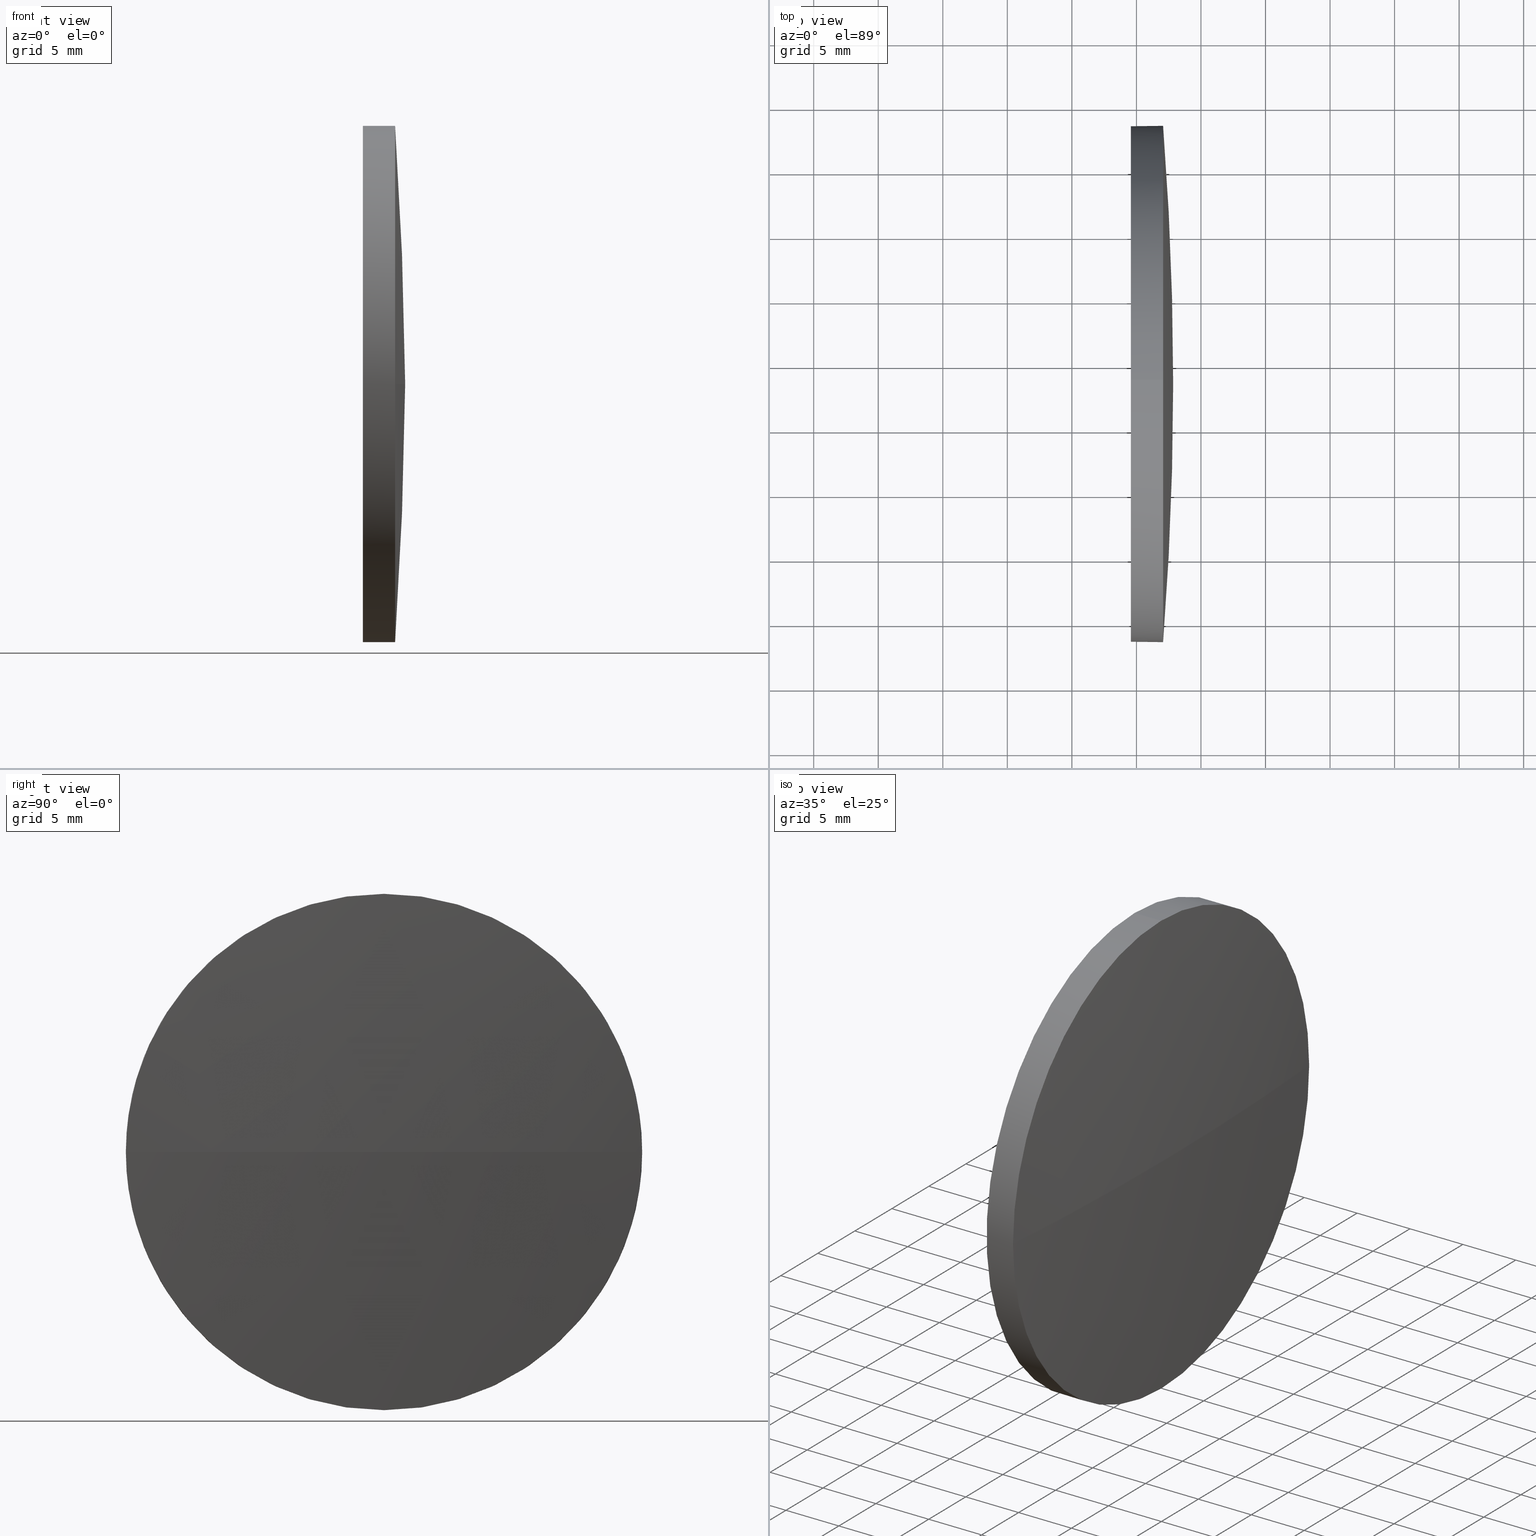
[diagram: canonical four-view strip — front | top / right | iso, engineering-drawing reading convention]
A machine part, canonical four-view strip (front | top / right | iso — engineering-drawing reading convention). The complete STEP part file that produces these views, byte-faithful:
ISO-10303-21;
HEADER;
FILE_DESCRIPTION (( 'STEP AP214' ),
    '1' );
FILE_NAME ('100235.STEP',
    '2019-05-28T05:45:17',
    ( '' ),
    ( '' ),
    'SwSTEP 2.0',
    'SolidWorks 2016',
    '' );
FILE_SCHEMA (( 'AUTOMOTIVE_DESIGN' ));
ENDSEC;

DATA;
#1 = DIRECTION ( 'NONE',  ( 0.0000000000000000000, 0.0000000000000000000, 1.000000000000000000 ) ) ;
#2 = PRODUCT_DEFINITION_FORMATION_WITH_SPECIFIED_SOURCE ( '�κ�', '', #74, .NOT_KNOWN. ) ;
#3 = CARTESIAN_POINT ( 'NONE',  ( 176.0471157877914800, 108.4341461141712300, 0.0000000000000000000 ) ) ;
#4 = PRESENTATION_LAYER_ASSIGNMENT (  '', '', ( #48 ) ) ;
#5 =( NAMED_UNIT ( * ) SI_UNIT ( $, .STERADIAN. ) SOLID_ANGLE_UNIT ( ) );
#6 = EDGE_LOOP ( 'NONE', ( #146, #47, #102, #87, #33 ) ) ;
#7 = APPLICATION_CONTEXT ( 'automotive_design' ) ;
#8 = CIRCLE ( 'NONE', #140, 256.8002564102557700 ) ;
#9 = EDGE_CURVE ( 'NONE', #184, #113, #120, .T. ) ;
#10 = ORIENTED_EDGE ( 'NONE', *, *, #28, .F. ) ;
#11 = UNCERTAINTY_MEASURE_WITH_UNIT (LENGTH_MEASURE( 1.000000000000000100E-005 ), #112, 'distance_accuracy_value', 'NONE');
#12 = FACE_OUTER_BOUND ( 'NONE', #6, .T. ) ;
#13 = EDGE_CURVE ( 'NONE', #137, #184, #145, .T. ) ;
#14 =( GEOMETRIC_REPRESENTATION_CONTEXT ( 3 ) GLOBAL_UNCERTAINTY_ASSIGNED_CONTEXT ( ( #11 ) ) GLOBAL_UNIT_ASSIGNED_CONTEXT ( ( #112, #41, #5 ) ) REPRESENTATION_CONTEXT ( 'NONE', 'WORKASPACE' ) );
#15 = EDGE_LOOP ( 'NONE', ( #99, #159, #10, #104 ) ) ;
#16 = ADVANCED_FACE ( 'NONE', ( #106 ), #80, .T. ) ;
#17 = DIRECTION ( 'NONE',  ( -1.000000000000000000, -0.0000000000000000000, -0.0000000000000000000 ) ) ;
#18 = CARTESIAN_POINT ( 'NONE',  ( 432.0673721980472200, 108.4341461141712000, -20.00000000000000400 ) ) ;
#19 = ORIENTED_EDGE ( 'NONE', *, *, #62, .T. ) ;
#20 = DIRECTION ( 'NONE',  ( 0.0000000000000000000, -1.000000000000000000, 0.0000000000000000000 ) ) ;
#21 = DIRECTION ( 'NONE',  ( 0.0000000000000000000, 0.0000000000000000000, 1.000000000000000000 ) ) ;
#22 = FACE_OUTER_BOUND ( 'NONE', #76, .T. ) ;
#23 = EDGE_CURVE ( 'NONE', #141, #31, #8, .T. ) ;
#24 =( GEOMETRIC_REPRESENTATION_CONTEXT ( 3 ) GLOBAL_UNCERTAINTY_ASSIGNED_CONTEXT ( ( #185 ) ) GLOBAL_UNIT_ASSIGNED_CONTEXT ( ( #147, #131, #59 ) ) REPRESENTATION_CONTEXT ( 'NONE', 'WORKASPACE' ) );
#25 = PRODUCT_DEFINITION_SHAPE ( 'NONE', 'NONE',  #180 ) ;
#26 =( NAMED_UNIT ( * ) PLANE_ANGLE_UNIT ( ) SI_UNIT ( $, .RADIAN. ) );
#27 = VERTEX_POINT ( 'NONE', #18 ) ;
#28 = EDGE_CURVE ( 'NONE', #137, #31, #148, .T. ) ;
#29 =( GEOMETRIC_REPRESENTATION_CONTEXT ( 3 ) GLOBAL_UNCERTAINTY_ASSIGNED_CONTEXT ( ( #136 ) ) GLOBAL_UNIT_ASSIGNED_CONTEXT ( ( #168, #26, #165 ) ) REPRESENTATION_CONTEXT ( 'NONE', 'WORKASPACE' ) );
#30 = AXIS2_PLACEMENT_3D ( 'NONE', #176, #17, #1 ) ;
#31 = VERTEX_POINT ( 'NONE', #64 ) ;
#32 = CIRCLE ( 'NONE', #183, 256.8002564102557700 ) ;
#33 = ORIENTED_EDGE ( 'NONE', *, *, #28, .T. ) ;
#34 = DIRECTION ( 'NONE',  ( 0.0000000000000000000, 0.0000000000000000000, 1.000000000000000000 ) ) ;
#35 = DIRECTION ( 'NONE',  ( 0.0000000000000000000, -1.000000000000000000, 0.0000000000000000000 ) ) ;
#36 = DIRECTION ( 'NONE',  ( 0.0000000000000000000, 0.0000000000000000000, 1.000000000000000000 ) ) ;
#37 = MECHANICAL_DESIGN_GEOMETRIC_PRESENTATION_REPRESENTATION (  '', ( #48 ), #14 ) ;
#38 = CARTESIAN_POINT ( 'NONE',  ( 429.5673721980472200, 108.4341461141712000, -20.00000000000000400 ) ) ;
#39 = PRESENTATION_STYLE_ASSIGNMENT (( #158 ) ) ;
#40 = AXIS2_PLACEMENT_3D ( 'NONE', #81, #164, #36 ) ;
#41 =( NAMED_UNIT ( * ) PLANE_ANGLE_UNIT ( ) SI_UNIT ( $, .RADIAN. ) );
#42 = CARTESIAN_POINT ( 'NONE',  ( 429.5673721980472200, 108.4341461141712000, 0.0000000000000000000 ) ) ;
#43 = FILL_AREA_STYLE ('',( #144 ) ) ;
#44 = APPLICATION_PROTOCOL_DEFINITION ( 'draft international standard', 'automotive_design', 1998, #7 ) ;
#45 = LINE ( 'NONE', #138, #96 ) ;
#46 = APPLICATION_PROTOCOL_DEFINITION ( 'draft international standard', 'automotive_design', 1998, #57 ) ;
#47 = ORIENTED_EDGE ( 'NONE', *, *, #53, .T. ) ;
#48 = STYLED_ITEM ( 'NONE', ( #160 ), #157 ) ;
#49 = ORIENTED_EDGE ( 'NONE', *, *, #115, .F. ) ;
#50 = CARTESIAN_POINT ( 'NONE',  ( 432.0673721980472200, 108.4341461141712000, 20.00000000000000400 ) ) ;
#51 = DIRECTION ( 'NONE',  ( -1.000000000000000000, 0.0000000000000000000, 0.0000000000000000000 ) ) ;
#52 = DIRECTION ( 'NONE',  ( 0.0000000000000000000, -1.224646799147353200E-016, 1.000000000000000000 ) ) ;
#53 = EDGE_CURVE ( 'NONE', #27, #113, #45, .T. ) ;
#54 = EDGE_LOOP ( 'NONE', ( #122, #19, #49, #173 ) ) ;
#55 = DIRECTION ( 'NONE',  ( 0.0000000000000000000, 0.0000000000000000000, 1.000000000000000000 ) ) ;
#56 = FACE_OUTER_BOUND ( 'NONE', #132, .T. ) ;
#57 = APPLICATION_CONTEXT ( 'automotive_design' ) ;
#58 = AXIS2_PLACEMENT_3D ( 'NONE', #68, #130, #86 ) ;
#59 =( NAMED_UNIT ( * ) SI_UNIT ( $, .STERADIAN. ) SOLID_ANGLE_UNIT ( ) );
#60 = CIRCLE ( 'NONE', #166, 20.00000000000000400 ) ;
#61 = ORIENTED_EDGE ( 'NONE', *, *, #13, .T. ) ;
#62 = EDGE_CURVE ( 'NONE', #141, #181, #32, .T. ) ;
#63 = CARTESIAN_POINT ( 'NONE',  ( 432.0673721980472200, 108.4341461141712000, 0.0000000000000000000 ) ) ;
#64 = CARTESIAN_POINT ( 'NONE',  ( 432.0673721980472200, 128.4341461141713700, 2.449293598294722300E-015 ) ) ;
#65 = ORIENTED_EDGE ( 'NONE', *, *, #71, .T. ) ;
#66 = CARTESIAN_POINT ( 'NONE',  ( 429.5673721980472200, 108.4341461141712000, 0.0000000000000000000 ) ) ;
#67 = DIRECTION ( 'NONE',  ( 0.0000000000000000000, 0.0000000000000000000, 1.000000000000000000 ) ) ;
#68 = CARTESIAN_POINT ( 'NONE',  ( 0.0000000000000000000, 0.0000000000000000000, 0.0000000000000000000 ) ) ;
#69 = ORIENTED_EDGE ( 'NONE', *, *, #88, .F. ) ;
#70 = CARTESIAN_POINT ( 'NONE',  ( 425.6024185870612700, 108.4341461141712000, 20.00000000000000400 ) ) ;
#71 = EDGE_CURVE ( 'NONE', #181, #137, #170, .T. ) ;
#72 = ORIENTED_EDGE ( 'NONE', *, *, #9, .T. ) ;
#73 = SURFACE_STYLE_FILL_AREA ( #171 ) ;
#74 = PRODUCT ( '100235', '100235', '', ( #182 ) ) ;
#75 = ADVANCED_FACE ( 'NONE', ( #121 ), #92, .T. ) ;
#76 = EDGE_LOOP ( 'NONE', ( #177, #155, #65, #61, #69 ) ) ;
#77 = CARTESIAN_POINT ( 'NONE',  ( 432.0673721980472200, 108.4341461141712000, 0.0000000000000000000 ) ) ;
#78 = DIRECTION ( 'NONE',  ( 0.0000000000000000000, 0.0000000000000000000, 1.000000000000000000 ) ) ;
#79 = CIRCLE ( 'NONE', #101, 20.00000000000000400 ) ;
#80 = SPHERICAL_SURFACE ( 'NONE', #174, 256.8002564102557700 ) ;
#81 = CARTESIAN_POINT ( 'NONE',  ( 432.0673721980472200, 108.4341461141712000, 0.0000000000000000000 ) ) ;
#82 = AXIS2_PLACEMENT_3D ( 'NONE', #110, #139, #67 ) ;
#83 = SHAPE_DEFINITION_REPRESENTATION ( #25, #124 ) ;
#84 = EDGE_CURVE ( 'NONE', #31, #27, #134, .T. ) ;
#85 = SURFACE_STYLE_USAGE ( .BOTH. , #169 ) ;
#86 = DIRECTION ( 'NONE',  ( 1.000000000000000000, 0.0000000000000000000, 0.0000000000000000000 ) ) ;
#87 = ORIENTED_EDGE ( 'NONE', *, *, #13, .F. ) ;
#88 = EDGE_CURVE ( 'NONE', #113, #184, #60, .T. ) ;
#89 = ADVANCED_FACE ( 'NONE', ( #12 ), #126, .T. ) ;
#90 = CARTESIAN_POINT ( 'NONE',  ( 432.0673721980472200, 108.4341461141712000, 0.0000000000000000000 ) ) ;
#91 = DIRECTION ( 'NONE',  ( -1.000000000000000000, -0.0000000000000000000, -0.0000000000000000000 ) ) ;
#92 = SPHERICAL_SURFACE ( 'NONE', #98, 256.8002564102557700 ) ;
#93 = PRODUCT_DEFINITION_CONTEXT ( 'detailed design', #7, 'design' ) ;
#94 = DIRECTION ( 'NONE',  ( -1.000000000000000000, -0.0000000000000000000, -0.0000000000000000000 ) ) ;
#95 = DIRECTION ( 'NONE',  ( 0.0000000000000000000, 0.0000000000000000000, 1.000000000000000000 ) ) ;
#96 = VECTOR ( 'NONE', #123, 1000.000000000000000 ) ;
#97 = DIRECTION ( 'NONE',  ( 1.000000000000000000, 0.0000000000000000000, 0.0000000000000000000 ) ) ;
#98 = AXIS2_PLACEMENT_3D ( 'NONE', #153, #128, #20 ) ;
#99 = ORIENTED_EDGE ( 'NONE', *, *, #62, .F. ) ;
#100 = SURFACE_SIDE_STYLE ('',( #73 ) ) ;
#101 = AXIS2_PLACEMENT_3D ( 'NONE', #77, #109, #34 ) ;
#102 = ORIENTED_EDGE ( 'NONE', *, *, #9, .F. ) ;
#103 = AXIS2_PLACEMENT_3D ( 'NONE', #42, #143, #55 ) ;
#104 = ORIENTED_EDGE ( 'NONE', *, *, #71, .F. ) ;
#105 = STYLED_ITEM ( 'NONE', ( #39 ), #124 ) ;
#106 = FACE_OUTER_BOUND ( 'NONE', #15, .T. ) ;
#107 = CLOSED_SHELL ( 'NONE', ( #89, #16, #75, #133, #149 ) ) ;
#108 = AXIS2_PLACEMENT_3D ( 'NONE', #63, #94, #78 ) ;
#109 = DIRECTION ( 'NONE',  ( -1.000000000000000000, -0.0000000000000000000, -0.0000000000000000000 ) ) ;
#110 = CARTESIAN_POINT ( 'NONE',  ( 425.6024185870612700, 108.4341461141712000, 0.0000000000000000000 ) ) ;
#111 = CARTESIAN_POINT ( 'NONE',  ( 176.0471157877914800, 108.4341461141712300, 0.0000000000000000000 ) ) ;
#112 =( LENGTH_UNIT ( ) NAMED_UNIT ( * ) SI_UNIT ( .MILLI., .METRE. ) );
#113 = VERTEX_POINT ( 'NONE', #38 ) ;
#114 = AXIS2_PLACEMENT_3D ( 'NONE', #90, #125, #152 ) ;
#115 = EDGE_CURVE ( 'NONE', #27, #181, #79, .T. ) ;
#116 = FILL_AREA_STYLE_COLOUR ( '', #175 ) ;
#117 = COLOUR_RGB ( '',1.000000000000000000, 1.000000000000000000, 1.000000000000000000 ) ;
#118 = CARTESIAN_POINT ( 'NONE',  ( 429.5673721980472200, 108.4341461141712000, 0.0000000000000000000 ) ) ;
#119 = PRODUCT_RELATED_PRODUCT_CATEGORY ( 'part', '', ( #74 ) ) ;
#120 = CIRCLE ( 'NONE', #103, 20.00000000000000400 ) ;
#121 = FACE_OUTER_BOUND ( 'NONE', #54, .T. ) ;
#122 = ORIENTED_EDGE ( 'NONE', *, *, #23, .F. ) ;
#123 = DIRECTION ( 'NONE',  ( -1.000000000000000000, -0.0000000000000000000, -0.0000000000000000000 ) ) ;
#124 = ADVANCED_BREP_SHAPE_REPRESENTATION ( '100235', ( #157, #58 ), #29 ) ;
#125 = DIRECTION ( 'NONE',  ( -1.000000000000000000, -0.0000000000000000000, -0.0000000000000000000 ) ) ;
#126 = CYLINDRICAL_SURFACE ( 'NONE', #82, 20.00000000000000400 ) ;
#127 = VECTOR ( 'NONE', #167, 1000.000000000000000 ) ;
#128 = DIRECTION ( 'NONE',  ( 0.0000000000000000000, 0.0000000000000000000, 1.000000000000000000 ) ) ;
#129 = AXIS2_PLACEMENT_3D ( 'NONE', #118, #97, #156 ) ;
#130 = DIRECTION ( 'NONE',  ( 0.0000000000000000000, 0.0000000000000000000, 1.000000000000000000 ) ) ;
#131 =( NAMED_UNIT ( * ) PLANE_ANGLE_UNIT ( ) SI_UNIT ( $, .RADIAN. ) );
#132 = EDGE_LOOP ( 'NONE', ( #72, #151 ) ) ;
#133 = ADVANCED_FACE ( 'NONE', ( #22 ), #150, .T. ) ;
#134 = CIRCLE ( 'NONE', #108, 20.00000000000000400 ) ;
#135 = PLANE ( 'NONE',  #129 ) ;
#136 = UNCERTAINTY_MEASURE_WITH_UNIT (LENGTH_MEASURE( 1.000000000000000100E-005 ), #168, 'distance_accuracy_value', 'NONE');
#137 = VERTEX_POINT ( 'NONE', #50 ) ;
#138 = CARTESIAN_POINT ( 'NONE',  ( 425.6024185870612700, 108.4341461141712000, -20.00000000000000400 ) ) ;
#139 = DIRECTION ( 'NONE',  ( -1.000000000000000000, -0.0000000000000000000, -0.0000000000000000000 ) ) ;
#140 = AXIS2_PLACEMENT_3D ( 'NONE', #162, #52, #178 ) ;
#141 = VERTEX_POINT ( 'NONE', #179 ) ;
#142 = CARTESIAN_POINT ( 'NONE',  ( 432.0673721980472200, 88.43414611417107100, 0.0000000000000000000 ) ) ;
#143 = DIRECTION ( 'NONE',  ( -1.000000000000000000, -0.0000000000000000000, -0.0000000000000000000 ) ) ;
#144 = FILL_AREA_STYLE_COLOUR ( '', #117 ) ;
#145 = LINE ( 'NONE', #70, #127 ) ;
#146 = ORIENTED_EDGE ( 'NONE', *, *, #84, .T. ) ;
#147 =( LENGTH_UNIT ( ) NAMED_UNIT ( * ) SI_UNIT ( .MILLI., .METRE. ) );
#148 = CIRCLE ( 'NONE', #40, 20.00000000000000400 ) ;
#149 = ADVANCED_FACE ( 'NONE', ( #56 ), #135, .F. ) ;
#150 = CYLINDRICAL_SURFACE ( 'NONE', #30, 20.00000000000000400 ) ;
#151 = ORIENTED_EDGE ( 'NONE', *, *, #88, .T. ) ;
#152 = DIRECTION ( 'NONE',  ( 0.0000000000000000000, 0.0000000000000000000, 1.000000000000000000 ) ) ;
#153 = CARTESIAN_POINT ( 'NONE',  ( 176.0471157877914800, 108.4341461141712300, 0.0000000000000000000 ) ) ;
#154 = CARTESIAN_POINT ( 'NONE',  ( 429.5673721980472200, 108.4341461141712000, 20.00000000000000400 ) ) ;
#155 = ORIENTED_EDGE ( 'NONE', *, *, #115, .T. ) ;
#156 = DIRECTION ( 'NONE',  ( 0.0000000000000000000, 0.0000000000000000000, -1.000000000000000000 ) ) ;
#157 = MANIFOLD_SOLID_BREP ( '��ת1', #107 ) ;
#158 = SURFACE_STYLE_USAGE ( .BOTH. , #100 ) ;
#159 = ORIENTED_EDGE ( 'NONE', *, *, #23, .T. ) ;
#160 = PRESENTATION_STYLE_ASSIGNMENT (( #85 ) ) ;
#161 = DIRECTION ( 'NONE',  ( 0.0000000000000000000, 0.0000000000000000000, -1.000000000000000000 ) ) ;
#162 = CARTESIAN_POINT ( 'NONE',  ( 176.0471157877914800, 108.4341461141712300, 0.0000000000000000000 ) ) ;
#163 = SURFACE_STYLE_FILL_AREA ( #43 ) ;
#164 = DIRECTION ( 'NONE',  ( -1.000000000000000000, -0.0000000000000000000, -0.0000000000000000000 ) ) ;
#165 =( NAMED_UNIT ( * ) SI_UNIT ( $, .STERADIAN. ) SOLID_ANGLE_UNIT ( ) );
#166 = AXIS2_PLACEMENT_3D ( 'NONE', #66, #91, #95 ) ;
#167 = DIRECTION ( 'NONE',  ( -1.000000000000000000, -0.0000000000000000000, -0.0000000000000000000 ) ) ;
#168 =( LENGTH_UNIT ( ) NAMED_UNIT ( * ) SI_UNIT ( .MILLI., .METRE. ) );
#169 = SURFACE_SIDE_STYLE ('',( #163 ) ) ;
#170 = CIRCLE ( 'NONE', #114, 20.00000000000000400 ) ;
#171 = FILL_AREA_STYLE ('',( #116 ) ) ;
#172 = PRESENTATION_LAYER_ASSIGNMENT (  '', '', ( #105 ) ) ;
#173 = ORIENTED_EDGE ( 'NONE', *, *, #84, .F. ) ;
#174 = AXIS2_PLACEMENT_3D ( 'NONE', #111, #21, #35 ) ;
#175 = COLOUR_RGB ( '',1.000000000000000000, 1.000000000000000000, 1.000000000000000000 ) ;
#176 = CARTESIAN_POINT ( 'NONE',  ( 425.6024185870612700, 108.4341461141712000, 0.0000000000000000000 ) ) ;
#177 = ORIENTED_EDGE ( 'NONE', *, *, #53, .F. ) ;
#178 = DIRECTION ( 'NONE',  ( 0.0000000000000000000, -1.000000000000000000, -1.224646799147353200E-016 ) ) ;
#179 = CARTESIAN_POINT ( 'NONE',  ( 432.8473721980472500, 108.4341461141712100, 0.0000000000000000000 ) ) ;
#180 = PRODUCT_DEFINITION ( 'δ֪', '', #2, #93 ) ;
#181 = VERTEX_POINT ( 'NONE', #142 ) ;
#182 = PRODUCT_CONTEXT ( 'NONE', #57, 'mechanical' ) ;
#183 = AXIS2_PLACEMENT_3D ( 'NONE', #3, #161, #51 ) ;
#184 = VERTEX_POINT ( 'NONE', #154 ) ;
#185 = UNCERTAINTY_MEASURE_WITH_UNIT (LENGTH_MEASURE( 1.000000000000000100E-005 ), #147, 'distance_accuracy_value', 'NONE');
#186 = MECHANICAL_DESIGN_GEOMETRIC_PRESENTATION_REPRESENTATION (  '', ( #105 ), #24 ) ;
ENDSEC;
END-ISO-10303-21;
